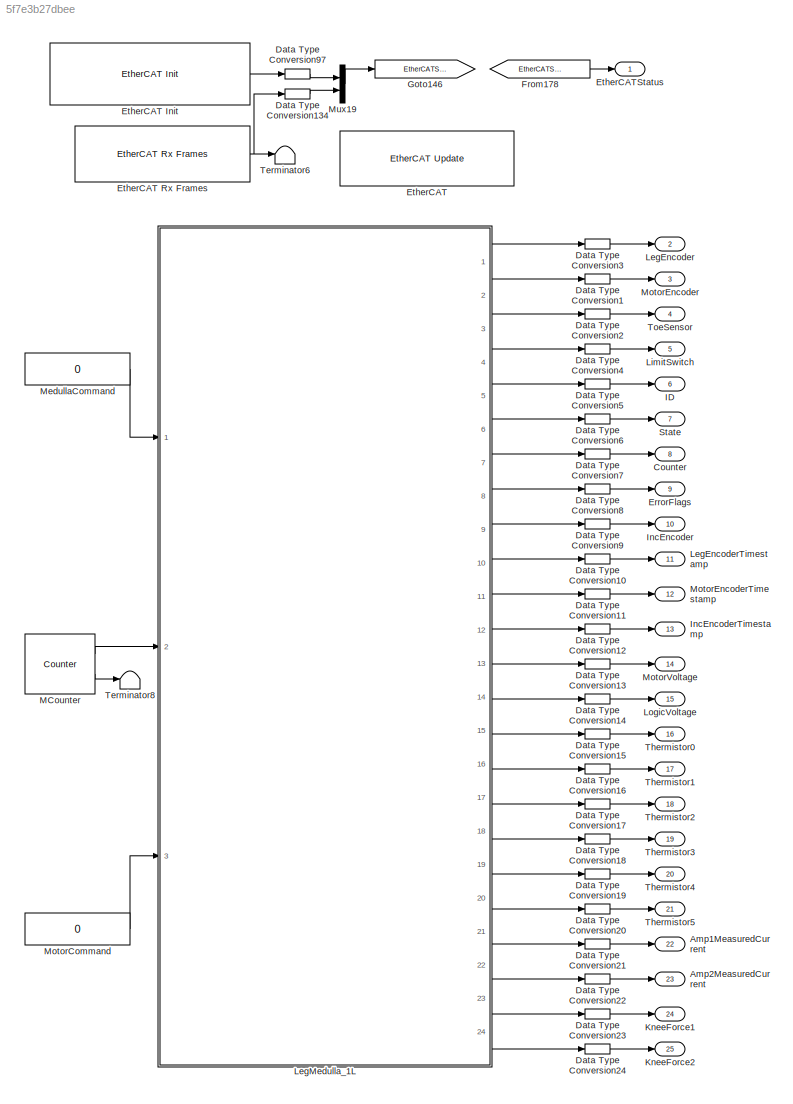
MODEL slx_5f7e3b27dbee
KIND model
BLOCK [Outport] Amp1MeasuredCurrent
  IconDisplay = Port number
  Port = 22
BLOCK [Outport] Amp2MeasuredCurrent
  IconDisplay = Port number
  Port = 23
BLOCK [Outport] Counter
  IconDisplay = Port number
  Port = 8
BLOCK [DataTypeConversion] Data Type Conversion1
  OutDataTypeStr = double
  RndMeth = Floor
  SaturateOnIntegerOverflow = off
BLOCK [DataTypeConversion] Data Type Conversion10
  OutDataTypeStr = double
  RndMeth = Floor
  SaturateOnIntegerOverflow = off
BLOCK [DataTypeConversion] Data Type Conversion11
  OutDataTypeStr = double
  RndMeth = Floor
  SaturateOnIntegerOverflow = off
BLOCK [DataTypeConversion] Data Type Conversion12
  OutDataTypeStr = double
  RndMeth = Floor
  SaturateOnIntegerOverflow = off
BLOCK [DataTypeConversion] Data Type Conversion13
  OutDataTypeStr = double
  RndMeth = Floor
  SaturateOnIntegerOverflow = off
BLOCK [DataTypeConversion] Data Type Conversion134
  OutDataTypeStr = double
  RndMeth = Floor
  SaturateOnIntegerOverflow = off
BLOCK [DataTypeConversion] Data Type Conversion14
  OutDataTypeStr = double
  RndMeth = Floor
  SaturateOnIntegerOverflow = off
BLOCK [DataTypeConversion] Data Type Conversion15
  OutDataTypeStr = double
  RndMeth = Floor
  SaturateOnIntegerOverflow = off
BLOCK [DataTypeConversion] Data Type Conversion16
  OutDataTypeStr = double
  RndMeth = Floor
  SaturateOnIntegerOverflow = off
BLOCK [DataTypeConversion] Data Type Conversion17
  OutDataTypeStr = double
  RndMeth = Floor
  SaturateOnIntegerOverflow = off
BLOCK [DataTypeConversion] Data Type Conversion18
  OutDataTypeStr = double
  RndMeth = Floor
  SaturateOnIntegerOverflow = off
BLOCK [DataTypeConversion] Data Type Conversion19
  OutDataTypeStr = double
  RndMeth = Floor
  SaturateOnIntegerOverflow = off
BLOCK [DataTypeConversion] Data Type Conversion2
  OutDataTypeStr = double
  RndMeth = Floor
  SaturateOnIntegerOverflow = off
BLOCK [DataTypeConversion] Data Type Conversion20
  OutDataTypeStr = double
  RndMeth = Floor
  SaturateOnIntegerOverflow = off
BLOCK [DataTypeConversion] Data Type Conversion21
  OutDataTypeStr = double
  RndMeth = Floor
  SaturateOnIntegerOverflow = off
BLOCK [DataTypeConversion] Data Type Conversion22
  OutDataTypeStr = double
  RndMeth = Floor
  SaturateOnIntegerOverflow = off
BLOCK [DataTypeConversion] Data Type Conversion23
  OutDataTypeStr = double
  RndMeth = Floor
  SaturateOnIntegerOverflow = off
BLOCK [DataTypeConversion] Data Type Conversion24
  OutDataTypeStr = double
  RndMeth = Floor
  SaturateOnIntegerOverflow = off
BLOCK [DataTypeConversion] Data Type Conversion3
  OutDataTypeStr = double
  RndMeth = Floor
  SaturateOnIntegerOverflow = off
BLOCK [DataTypeConversion] Data Type Conversion4
  OutDataTypeStr = double
  RndMeth = Floor
  SaturateOnIntegerOverflow = off
BLOCK [DataTypeConversion] Data Type Conversion5
  OutDataTypeStr = double
  RndMeth = Floor
  SaturateOnIntegerOverflow = off
BLOCK [DataTypeConversion] Data Type Conversion6
  OutDataTypeStr = double
  RndMeth = Floor
  SaturateOnIntegerOverflow = off
BLOCK [DataTypeConversion] Data Type Conversion7
  OutDataTypeStr = double
  RndMeth = Floor
  SaturateOnIntegerOverflow = off
BLOCK [DataTypeConversion] Data Type Conversion8
  OutDataTypeStr = double
  RndMeth = Floor
  SaturateOnIntegerOverflow = off
BLOCK [DataTypeConversion] Data Type Conversion9
  OutDataTypeStr = double
  RndMeth = Floor
  SaturateOnIntegerOverflow = off
BLOCK [DataTypeConversion] Data Type Conversion97
  OutDataTypeStr = double
  RndMeth = Floor
  SaturateOnIntegerOverflow = off
BLOCK [Outport] ErrorFlags
  IconDisplay = Port number
  Port = 9
BLOCK [Reference] EtherCAT  REF=xpcethercatlib/EtherCAT Update 
  Ports = []
  Priority = 4
  SourceBlock = xpcethercatlib/EtherCAT Update
  SourceType = xpcethercat_update
  device_id = 0
  task_id_list = [1]
  task_priorities = [1500]
  task_rates = [1]
BLOCK [Reference] EtherCAT Init   REF=xpcethercatlib/EtherCAT Init 
  Ports = [0, 1]
  Priority = 0
  SourceBlock = xpcethercatlib/EtherCAT Init
  SourceType = xpcethercatinit
  config_file = 'SingleLeg-eni.xml'
  device_id = 0
  enaDC = on
  errRptLevel = 0
  pci_bus = 10
  pci_slot = 0
  sample_time = -1
BLOCK [Reference] EtherCAT Rx Frames  REF=xpcethercatlib/EtherCAT Rx Frames 
  Ports = [0, 1]
  Priority = 1
  SourceBlock = xpcethercatlib/EtherCAT Rx Frames
  SourceType = xpcethercat_rcvframes
  device_id = 0
  sample_time = 0
BLOCK [Outport] EtherCATStatus
  IconDisplay = Port number
BLOCK [From] From178
  GotoTag = EtherCATStatus
BLOCK [Goto] Goto146
  GotoTag = EtherCATStatus
BLOCK [Outport] ID
  IconDisplay = Port number
  Port = 6
BLOCK [Outport] IncEncoder
  IconDisplay = Port number
  Port = 10
BLOCK [Outport] IncEncoderTimestamp
  IconDisplay = Port number
  Port = 13
BLOCK [Outport] KneeForce1
  IconDisplay = Port number
  Port = 24
BLOCK [Outport] KneeForce2
  IconDisplay = Port number
  Port = 25
BLOCK [Outport] LegEncoder
  IconDisplay = Port number
  Port = 2
BLOCK [Outport] LegEncoderTimestamp
  IconDisplay = Port number
  Port = 11
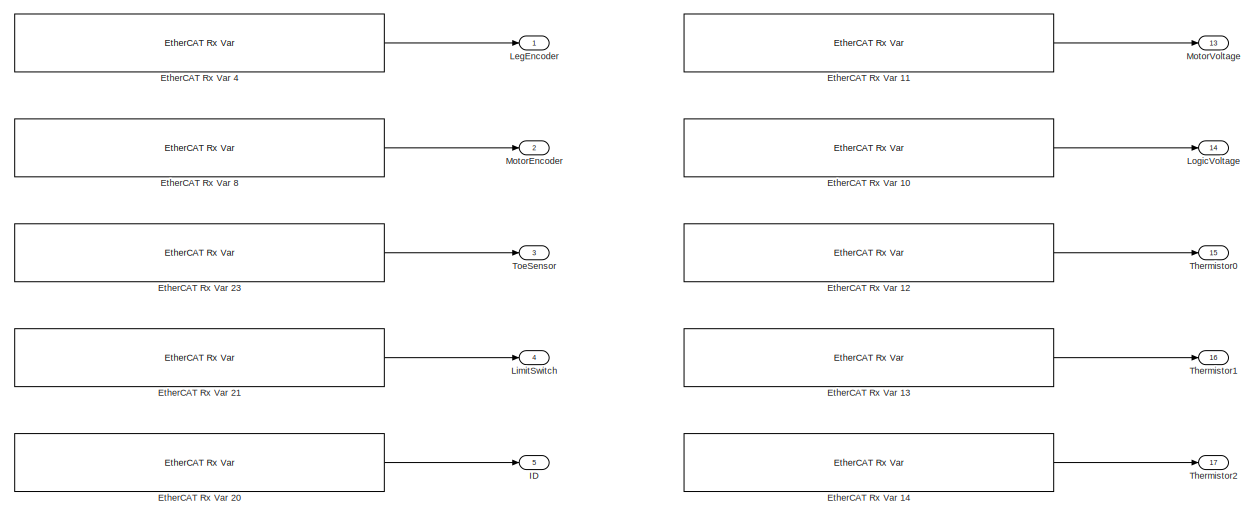
[diagram: LegMedulla_1L - part 1/3, top left region]
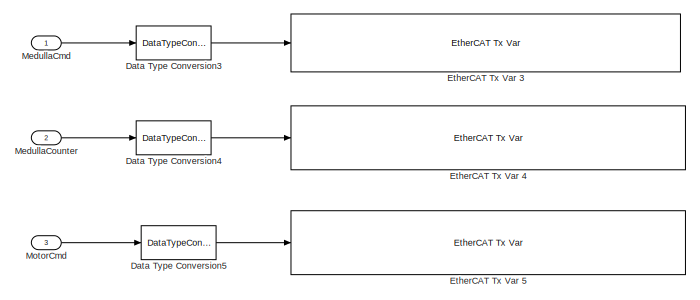
[diagram: LegMedulla_1L - part 2/3, top right region]
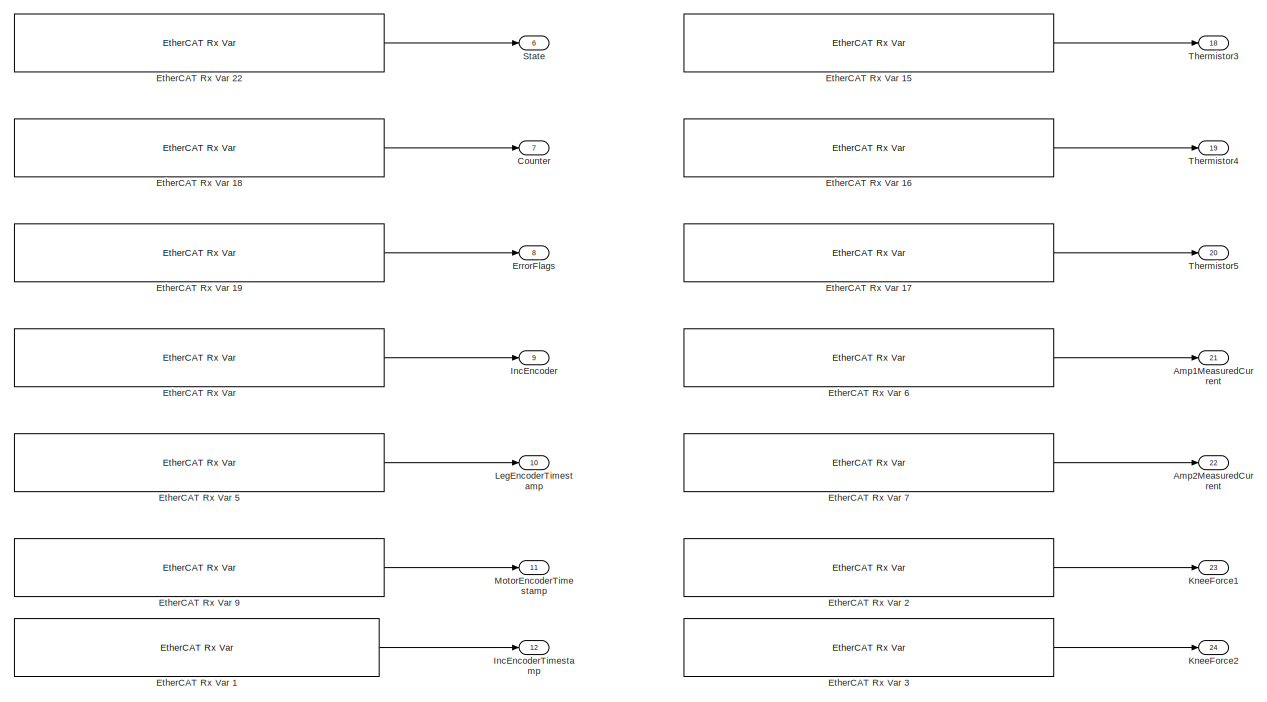
[diagram: LegMedulla_1L - part 3/3, bottom left region]
BLOCK [SubSystem] LegMedulla_1L
  FunctionWithSeparateData = off
  MaskHideContents = off
  MinAlgLoopOccurrences = off
  Opaque = off
  Ports = [3, 24]
  PropExecContextOutsideSubsystem = off
  RTWSystemCode = Auto
  RequestExecContextInheritance = off
BLOCK [Outport] LegMedulla_1L/Amp1MeasuredCurrent
  IconDisplay = Port number
  Port = 21
BLOCK [Outport] LegMedulla_1L/Amp2MeasuredCurrent
  IconDisplay = Port number
  Port = 22
BLOCK [Outport] LegMedulla_1L/Counter
  IconDisplay = Port number
  Port = 7
BLOCK [DataTypeConversion] LegMedulla_1L/Data Type Conversion3
  OutDataTypeStr = uint8
  RndMeth = Floor
  SaturateOnIntegerOverflow = off
BLOCK [DataTypeConversion] LegMedulla_1L/Data Type Conversion4
  OutDataTypeStr = uint16
  RndMeth = Floor
  SaturateOnIntegerOverflow = off
BLOCK [DataTypeConversion] LegMedulla_1L/Data Type Conversion5
  OutDataTypeStr = int32
  RndMeth = Floor
  SaturateOnIntegerOverflow = off
BLOCK [Outport] LegMedulla_1L/ErrorFlags
  IconDisplay = Port number
  Port = 8
BLOCK [Reference] LegMedulla_1L/EtherCAT Rx Var   REF=xpcethercatlib/EtherCAT Rx Var 
  Ports = [0, 1]
  Priority = 2
  SourceBlock = xpcethercatlib/EtherCAT Rx Var
  SourceType = xpcethercat_rx_var
  device_id = 0
  sample_time = 0.001000
  sig_dim = 1
  sig_name = Box 1 (ATRIAS 2.1 Leg (Medulla 1.5)).Incremental Encoder.Incremental Encoder
  sig_offset = 744
  sig_type = uint16
  type_size = 16
BLOCK [Reference] LegMedulla_1L/EtherCAT Rx Var 1  REF=xpcethercatlib/EtherCAT Rx Var 
  Ports = [0, 1]
  Priority = 2
  SourceBlock = xpcethercatlib/EtherCAT Rx Var
  SourceType = xpcethercat_rx_var
  device_id = 0
  sample_time = 0.001000
  sig_dim = 1
  sig_name = Box 1 (ATRIAS 2.1 Leg (Medulla 1.5)).Incremental Encoder.Incremental Encoder Timestamp
  sig_offset = 760
  sig_type = uint16
  type_size = 16
BLOCK [Reference] LegMedulla_1L/EtherCAT Rx Var 10  REF=xpcethercatlib/EtherCAT Rx Var 
  Ports = [0, 1]
  Priority = 2
  SourceBlock = xpcethercatlib/EtherCAT Rx Var
  SourceType = xpcethercat_rx_var
  device_id = 0
  sample_time = 0.001000
  sig_dim = 1
  sig_name = Box 1 (ATRIAS 2.1 Leg (Medulla 1.5)).Power.Logic Voltage
  sig_offset = 792
  sig_type = uint16
  type_size = 16
BLOCK [Reference] LegMedulla_1L/EtherCAT Rx Var 11  REF=xpcethercatlib/EtherCAT Rx Var 
  Ports = [0, 1]
  Priority = 2
  SourceBlock = xpcethercatlib/EtherCAT Rx Var
  SourceType = xpcethercat_rx_var
  device_id = 0
  sample_time = 0.001000
  sig_dim = 1
  sig_name = Box 1 (ATRIAS 2.1 Leg (Medulla 1.5)).Power.Motor Voltage
  sig_offset = 776
  sig_type = uint16
  type_size = 16
BLOCK [Reference] LegMedulla_1L/EtherCAT Rx Var 12  REF=xpcethercatlib/EtherCAT Rx Var 
  Ports = [0, 1]
  Priority = 2
  SourceBlock = xpcethercatlib/EtherCAT Rx Var
  SourceType = xpcethercat_rx_var
  device_id = 0
  sample_time = 0.001000
  sig_dim = 1
  sig_name = Box 1 (ATRIAS 2.1 Leg (Medulla 1.5)).Thermistors.Thermistor 0
  sig_offset = 808
  sig_type = uint16
  type_size = 16
BLOCK [Reference] LegMedulla_1L/EtherCAT Rx Var 13  REF=xpcethercatlib/EtherCAT Rx Var 
  Ports = [0, 1]
  Priority = 2
  SourceBlock = xpcethercatlib/EtherCAT Rx Var
  SourceType = xpcethercat_rx_var
  device_id = 0
  sample_time = 0.001000
  sig_dim = 1
  sig_name = Box 1 (ATRIAS 2.1 Leg (Medulla 1.5)).Thermistors.Thermistor 1
  sig_offset = 824
  sig_type = uint16
  type_size = 16
BLOCK [Reference] LegMedulla_1L/EtherCAT Rx Var 14  REF=xpcethercatlib/EtherCAT Rx Var 
  Ports = [0, 1]
  Priority = 2
  SourceBlock = xpcethercatlib/EtherCAT Rx Var
  SourceType = xpcethercat_rx_var
  device_id = 0
  sample_time = 0.001000
  sig_dim = 1
  sig_name = Box 1 (ATRIAS 2.1 Leg (Medulla 1.5)).Thermistors.Thermistor 2
  sig_offset = 840
  sig_type = uint16
  type_size = 16
BLOCK [Reference] LegMedulla_1L/EtherCAT Rx Var 15  REF=xpcethercatlib/EtherCAT Rx Var 
  Ports = [0, 1]
  Priority = 2
  SourceBlock = xpcethercatlib/EtherCAT Rx Var
  SourceType = xpcethercat_rx_var
  device_id = 0
  sample_time = 0.001000
  sig_dim = 1
  sig_name = Box 1 (ATRIAS 2.1 Leg (Medulla 1.5)).Thermistors.Thermistor 3
  sig_offset = 856
  sig_type = uint16
  type_size = 16
BLOCK [Reference] LegMedulla_1L/EtherCAT Rx Var 16  REF=xpcethercatlib/EtherCAT Rx Var 
  Ports = [0, 1]
  Priority = 2
  SourceBlock = xpcethercatlib/EtherCAT Rx Var
  SourceType = xpcethercat_rx_var
  device_id = 0
  sample_time = 0.001000
  sig_dim = 1
  sig_name = Box 1 (ATRIAS 2.1 Leg (Medulla 1.5)).Thermistors.Thermistor 4
  sig_offset = 872
  sig_type = uint16
  type_size = 16
BLOCK [Reference] LegMedulla_1L/EtherCAT Rx Var 17  REF=xpcethercatlib/EtherCAT Rx Var 
  Ports = [0, 1]
  Priority = 2
  SourceBlock = xpcethercatlib/EtherCAT Rx Var
  SourceType = xpcethercat_rx_var
  device_id = 0
  sample_time = 0.001000
  sig_dim = 1
  sig_name = Box 1 (ATRIAS 2.1 Leg (Medulla 1.5)).Thermistors.Thermistor 5
  sig_offset = 888
  sig_type = uint16
  type_size = 16
BLOCK [Reference] LegMedulla_1L/EtherCAT Rx Var 18  REF=xpcethercatlib/EtherCAT Rx Var 
  Ports = [0, 1]
  Priority = 2
  SourceBlock = xpcethercatlib/EtherCAT Rx Var
  SourceType = xpcethercat_rx_var
  device_id = 0
  sample_time = 0.001000
  sig_dim = 1
  sig_name = Box 1 (ATRIAS 2.1 Leg (Medulla 1.5)).uController Status.Counter
  sig_offset = 608
  sig_type = uint8
  type_size = 8
BLOCK [Reference] LegMedulla_1L/EtherCAT Rx Var 19  REF=xpcethercatlib/EtherCAT Rx Var 
  Ports = [0, 1]
  Priority = 2
  SourceBlock = xpcethercatlib/EtherCAT Rx Var
  SourceType = xpcethercat_rx_var
  device_id = 0
  sample_time = 0.001000
  sig_dim = 1
  sig_name = Box 1 (ATRIAS 2.1 Leg (Medulla 1.5)).uController Status.Error Flags
  sig_offset = 616
  sig_type = uint8
  type_size = 8
BLOCK [Reference] LegMedulla_1L/EtherCAT Rx Var 2  REF=xpcethercatlib/EtherCAT Rx Var 
  Ports = [0, 1]
  Priority = 2
  SourceBlock = xpcethercatlib/EtherCAT Rx Var
  SourceType = xpcethercat_rx_var
  device_id = 0
  sample_time = 0.001000
  sig_dim = 1
  sig_name = Box 1 (ATRIAS 2.1 Leg (Medulla 1.5)).Knee Force.Knee Force 1
  sig_offset = 936
  sig_type = uint16
  type_size = 16
BLOCK [Reference] LegMedulla_1L/EtherCAT Rx Var 20  REF=xpcethercatlib/EtherCAT Rx Var 
  Ports = [0, 1]
  Priority = 2
  SourceBlock = xpcethercatlib/EtherCAT Rx Var
  SourceType = xpcethercat_rx_var
  device_id = 0
  sample_time = 0.001000
  sig_dim = 1
  sig_name = Box 1 (ATRIAS 2.1 Leg (Medulla 1.5)).uController Status.ID
  sig_offset = 592
  sig_type = uint8
  type_size = 8
BLOCK [Reference] LegMedulla_1L/EtherCAT Rx Var 21  REF=xpcethercatlib/EtherCAT Rx Var 
  Ports = [0, 1]
  Priority = 2
  SourceBlock = xpcethercatlib/EtherCAT Rx Var
  SourceType = xpcethercat_rx_var
  device_id = 0
  sample_time = 0.001000
  sig_dim = 1
  sig_name = Box 1 (ATRIAS 2.1 Leg (Medulla 1.5)).uController Status.Limit Switch
  sig_offset = 624
  sig_type = uint8
  type_size = 8
BLOCK [Reference] LegMedulla_1L/EtherCAT Rx Var 22  REF=xpcethercatlib/EtherCAT Rx Var 
  Ports = [0, 1]
  Priority = 2
  SourceBlock = xpcethercatlib/EtherCAT Rx Var
  SourceType = xpcethercat_rx_var
  device_id = 0
  sample_time = 0.001000
  sig_dim = 1
  sig_name = Box 1 (ATRIAS 2.1 Leg (Medulla 1.5)).uController Status.State
  sig_offset = 600
  sig_type = uint8
  type_size = 8
BLOCK [Reference] LegMedulla_1L/EtherCAT Rx Var 23  REF=xpcethercatlib/EtherCAT Rx Var 
  Ports = [0, 1]
  Priority = 2
  SourceBlock = xpcethercatlib/EtherCAT Rx Var
  SourceType = xpcethercat_rx_var
  device_id = 0
  sample_time = 0.001000
  sig_dim = 1
  sig_name = Box 1 (ATRIAS 2.1 Leg (Medulla 1.5)).uController Status.Toe Sensor
  sig_offset = 632
  sig_type = uint16
  type_size = 16
BLOCK [Reference] LegMedulla_1L/EtherCAT Rx Var 3  REF=xpcethercatlib/EtherCAT Rx Var 
  Ports = [0, 1]
  Priority = 2
  SourceBlock = xpcethercatlib/EtherCAT Rx Var
  SourceType = xpcethercat_rx_var
  device_id = 0
  sample_time = 0.001000
  sig_dim = 1
  sig_name = Box 1 (ATRIAS 2.1 Leg (Medulla 1.5)).Knee Force.Knee Force 2
  sig_offset = 952
  sig_type = uint16
  type_size = 16
BLOCK [Reference] LegMedulla_1L/EtherCAT Rx Var 4  REF=xpcethercatlib/EtherCAT Rx Var 
  Ports = [0, 1]
  Priority = 2
  SourceBlock = xpcethercatlib/EtherCAT Rx Var
  SourceType = xpcethercat_rx_var
  device_id = 0
  sample_time = 0.001000
  sig_dim = 1
  sig_name = Box 1 (ATRIAS 2.1 Leg (Medulla 1.5)).Leg Encoder.Leg Encoder
  sig_offset = 696
  sig_type = uint32
  type_size = 32
BLOCK [Reference] LegMedulla_1L/EtherCAT Rx Var 5  REF=xpcethercatlib/EtherCAT Rx Var 
  Ports = [0, 1]
  Priority = 2
  SourceBlock = xpcethercatlib/EtherCAT Rx Var
  SourceType = xpcethercat_rx_var
  device_id = 0
  sample_time = 0.001000
  sig_dim = 1
  sig_name = Box 1 (ATRIAS 2.1 Leg (Medulla 1.5)).Leg Encoder.Leg Encoder Timestamp
  sig_offset = 728
  sig_type = uint16
  type_size = 16
BLOCK [Reference] LegMedulla_1L/EtherCAT Rx Var 6  REF=xpcethercatlib/EtherCAT Rx Var 
  Ports = [0, 1]
  Priority = 2
  SourceBlock = xpcethercatlib/EtherCAT Rx Var
  SourceType = xpcethercat_rx_var
  device_id = 0
  sample_time = 0.001000
  sig_dim = 1
  sig_name = Box 1 (ATRIAS 2.1 Leg (Medulla 1.5)).Measured Current.Amp 1 Measured Current
  sig_offset = 904
  sig_type = int16
  type_size = 16
BLOCK [Reference] LegMedulla_1L/EtherCAT Rx Var 7  REF=xpcethercatlib/EtherCAT Rx Var 
  Ports = [0, 1]
  Priority = 2
  SourceBlock = xpcethercatlib/EtherCAT Rx Var
  SourceType = xpcethercat_rx_var
  device_id = 0
  sample_time = 0.001000
  sig_dim = 1
  sig_name = Box 1 (ATRIAS 2.1 Leg (Medulla 1.5)).Measured Current.Amp 2 Measured Current
  sig_offset = 920
  sig_type = int16
  type_size = 16
BLOCK [Reference] LegMedulla_1L/EtherCAT Rx Var 8  REF=xpcethercatlib/EtherCAT Rx Var 
  Ports = [0, 1]
  Priority = 2
  SourceBlock = xpcethercatlib/EtherCAT Rx Var
  SourceType = xpcethercat_rx_var
  device_id = 0
  sample_time = 0.001000
  sig_dim = 1
  sig_name = Box 1 (ATRIAS 2.1 Leg (Medulla 1.5)).Motor Encoder.Motor Encoder
  sig_offset = 648
  sig_type = uint32
  type_size = 32
BLOCK [Reference] LegMedulla_1L/EtherCAT Rx Var 9  REF=xpcethercatlib/EtherCAT Rx Var 
  Ports = [0, 1]
  Priority = 2
  SourceBlock = xpcethercatlib/EtherCAT Rx Var
  SourceType = xpcethercat_rx_var
  device_id = 0
  sample_time = 0.001000
  sig_dim = 1
  sig_name = Box 1 (ATRIAS 2.1 Leg (Medulla 1.5)).Motor Encoder.Motor Encoder Timestamp
  sig_offset = 680
  sig_type = uint16
  type_size = 16
BLOCK [Reference] LegMedulla_1L/EtherCAT Tx Var 3  REF=xpcethercatlib/EtherCAT Tx Var 
  Ports = [1]
  Priority = 3
  SourceBlock = xpcethercatlib/EtherCAT Tx Var
  SourceType = xpcethercat_tx_var
  device_id = 0
  sample_time = 0.001000
  sig_dim = 1
  sig_name = Box 1 (ATRIAS 2.1 Leg (Medulla 1.5)).uControllerInput.Command
  sig_offset = 592
  sig_type = uint8
  type_size = 8
BLOCK [Reference] LegMedulla_1L/EtherCAT Tx Var 4  REF=xpcethercatlib/EtherCAT Tx Var 
  Ports = [1]
  Priority = 3
  SourceBlock = xpcethercatlib/EtherCAT Tx Var
  SourceType = xpcethercat_tx_var
  device_id = 0
  sample_time = 0.001000
  sig_dim = 1
  sig_name = Box 1 (ATRIAS 2.1 Leg (Medulla 1.5)).uControllerInput.Counter
  sig_offset = 600
  sig_type = uint16
  type_size = 16
BLOCK [Reference] LegMedulla_1L/EtherCAT Tx Var 5  REF=xpcethercatlib/EtherCAT Tx Var 
  Ports = [1]
  Priority = 3
  SourceBlock = xpcethercatlib/EtherCAT Tx Var
  SourceType = xpcethercat_tx_var
  device_id = 0
  sample_time = 0.001000
  sig_dim = 1
  sig_name = Box 1 (ATRIAS 2.1 Leg (Medulla 1.5)).uControllerInput.Motor Current
  sig_offset = 616
  sig_type = int32
  type_size = 32
BLOCK [Outport] LegMedulla_1L/ID
  IconDisplay = Port number
  Port = 5
BLOCK [Outport] LegMedulla_1L/IncEncoder
  IconDisplay = Port number
  Port = 9
BLOCK [Outport] LegMedulla_1L/IncEncoderTimestamp
  IconDisplay = Port number
  Port = 12
BLOCK [Outport] LegMedulla_1L/KneeForce1
  IconDisplay = Port number
  Port = 23
BLOCK [Outport] LegMedulla_1L/KneeForce2
  IconDisplay = Port number
  Port = 24
BLOCK [Outport] LegMedulla_1L/LegEncoder
  IconDisplay = Port number
BLOCK [Outport] LegMedulla_1L/LegEncoderTimestamp
  IconDisplay = Port number
  Port = 10
BLOCK [Outport] LegMedulla_1L/LimitSwitch
  IconDisplay = Port number
  Port = 4
BLOCK [Outport] LegMedulla_1L/LogicVoltage
  IconDisplay = Port number
  Port = 14
BLOCK [Inport] LegMedulla_1L/MedullaCmd
  IconDisplay = Port number
BLOCK [Inport] LegMedulla_1L/MedullaCounter
  IconDisplay = Port number
  Port = 2
BLOCK [Inport] LegMedulla_1L/MotorCmd
  IconDisplay = Port number
  Port = 3
BLOCK [Outport] LegMedulla_1L/MotorEncoder
  IconDisplay = Port number
  Port = 2
BLOCK [Outport] LegMedulla_1L/MotorEncoderTimestamp
  IconDisplay = Port number
  Port = 11
BLOCK [Outport] LegMedulla_1L/MotorVoltage
  IconDisplay = Port number
  Port = 13
BLOCK [Outport] LegMedulla_1L/State
  IconDisplay = Port number
  Port = 6
BLOCK [Outport] LegMedulla_1L/Thermistor0
  IconDisplay = Port number
  Port = 15
BLOCK [Outport] LegMedulla_1L/Thermistor1
  IconDisplay = Port number
  Port = 16
BLOCK [Outport] LegMedulla_1L/Thermistor2
  IconDisplay = Port number
  Port = 17
BLOCK [Outport] LegMedulla_1L/Thermistor3
  IconDisplay = Port number
  Port = 18
BLOCK [Outport] LegMedulla_1L/Thermistor4
  IconDisplay = Port number
  Port = 19
BLOCK [Outport] LegMedulla_1L/Thermistor5
  IconDisplay = Port number
  Port = 20
BLOCK [Outport] LegMedulla_1L/ToeSensor
  IconDisplay = Port number
  Port = 3
BLOCK [Outport] LimitSwitch
  IconDisplay = Port number
  Port = 5
BLOCK [Outport] LogicVoltage
  IconDisplay = Port number
  Port = 15
BLOCK [Reference] MCounter  REF=dspswit3/Counter
  CntDtype = double
  CountEvent = Free running
  CounterSize = User defined
  Direction = Up
  HitDtype = Logical
  HitValue = 32
  InitialCount = 0
  MaxCount = 65535
  Output = Count and Hit
  Ports = [0, 2]
  ResetInput = off
  SamplesPerFrame = 1
  SourceBlock = dspswit3/Counter
  SourceType = Counter
  Ts = .001
BLOCK [Constant] MedullaCommand
  Value = 0
BLOCK [Constant] MotorCommand
  Value = 0
BLOCK [Outport] MotorEncoder
  IconDisplay = Port number
  Port = 3
BLOCK [Outport] MotorEncoderTimestamp
  IconDisplay = Port number
  Port = 12
BLOCK [Outport] MotorVoltage
  IconDisplay = Port number
  Port = 14
BLOCK [Mux] Mux19
  DisplayOption = bar
  Inputs = 2
  Ports = [2, 1]
BLOCK [Outport] State
  IconDisplay = Port number
  Port = 7
BLOCK [Terminator] Terminator6
BLOCK [Terminator] Terminator8
BLOCK [Outport] Thermistor0
  IconDisplay = Port number
  Port = 16
BLOCK [Outport] Thermistor1
  IconDisplay = Port number
  Port = 17
BLOCK [Outport] Thermistor2
  IconDisplay = Port number
  Port = 18
BLOCK [Outport] Thermistor3
  IconDisplay = Port number
  Port = 19
BLOCK [Outport] Thermistor4
  IconDisplay = Port number
  Port = 20
BLOCK [Outport] Thermistor5
  IconDisplay = Port number
  Port = 21
BLOCK [Outport] ToeSensor
  IconDisplay = Port number
  Port = 4
LINE Data Type Conversion10:1 -> LegEncoderTimestamp:1
LINE Data Type Conversion11:1 -> MotorEncoderTimestamp:1
LINE Data Type Conversion12:1 -> IncEncoderTimestamp:1
LINE Data Type Conversion134:1 -> Mux19:2
LINE Data Type Conversion13:1 -> MotorVoltage:1
LINE Data Type Conversion14:1 -> LogicVoltage:1
LINE Data Type Conversion15:1 -> Thermistor0:1
LINE Data Type Conversion16:1 -> Thermistor1:1
LINE Data Type Conversion17:1 -> Thermistor2:1
LINE Data Type Conversion18:1 -> Thermistor3:1
LINE Data Type Conversion19:1 -> Thermistor4:1
LINE Data Type Conversion1:1 -> MotorEncoder:1
LINE Data Type Conversion20:1 -> Thermistor5:1
LINE Data Type Conversion21:1 -> Amp1MeasuredCurrent:1
LINE Data Type Conversion22:1 -> Amp2MeasuredCurrent:1
LINE Data Type Conversion23:1 -> KneeForce1:1
LINE Data Type Conversion24:1 -> KneeForce2:1
LINE Data Type Conversion2:1 -> ToeSensor:1
LINE Data Type Conversion3:1 -> LegEncoder:1
LINE Data Type Conversion4:1 -> LimitSwitch:1
LINE Data Type Conversion5:1 -> ID:1
LINE Data Type Conversion6:1 -> State:1
LINE Data Type Conversion7:1 -> Counter:1
LINE Data Type Conversion8:1 -> ErrorFlags:1
LINE Data Type Conversion97:1 -> Mux19:1
LINE Data Type Conversion9:1 -> IncEncoder:1
LINE EtherCAT Init :1 -> Data Type Conversion97:1
NET EtherCAT Rx Frames:1 -> Data Type Conversion134:1, Terminator6:1
LINE From178:1 -> EtherCATStatus:1
LINE LegMedulla_1L/Data Type Conversion3:1 -> LegMedulla_1L/EtherCAT Tx Var 3:1
LINE LegMedulla_1L/Data Type Conversion4:1 -> LegMedulla_1L/EtherCAT Tx Var 4:1
LINE LegMedulla_1L/Data Type Conversion5:1 -> LegMedulla_1L/EtherCAT Tx Var 5:1
LINE LegMedulla_1L/EtherCAT Rx Var 10:1 -> LegMedulla_1L/LogicVoltage:1
LINE LegMedulla_1L/EtherCAT Rx Var 11:1 -> LegMedulla_1L/MotorVoltage:1
LINE LegMedulla_1L/EtherCAT Rx Var 12:1 -> LegMedulla_1L/Thermistor0:1
LINE LegMedulla_1L/EtherCAT Rx Var 13:1 -> LegMedulla_1L/Thermistor1:1
LINE LegMedulla_1L/EtherCAT Rx Var 14:1 -> LegMedulla_1L/Thermistor2:1
LINE LegMedulla_1L/EtherCAT Rx Var 15:1 -> LegMedulla_1L/Thermistor3:1
LINE LegMedulla_1L/EtherCAT Rx Var 16:1 -> LegMedulla_1L/Thermistor4:1
LINE LegMedulla_1L/EtherCAT Rx Var 17:1 -> LegMedulla_1L/Thermistor5:1
LINE LegMedulla_1L/EtherCAT Rx Var 18:1 -> LegMedulla_1L/Counter:1
LINE LegMedulla_1L/EtherCAT Rx Var 19:1 -> LegMedulla_1L/ErrorFlags:1
LINE LegMedulla_1L/EtherCAT Rx Var 1:1 -> LegMedulla_1L/IncEncoderTimestamp:1
LINE LegMedulla_1L/EtherCAT Rx Var 20:1 -> LegMedulla_1L/ID:1
LINE LegMedulla_1L/EtherCAT Rx Var 21:1 -> LegMedulla_1L/LimitSwitch:1
LINE LegMedulla_1L/EtherCAT Rx Var 22:1 -> LegMedulla_1L/State:1
LINE LegMedulla_1L/EtherCAT Rx Var 23:1 -> LegMedulla_1L/ToeSensor:1
LINE LegMedulla_1L/EtherCAT Rx Var 2:1 -> LegMedulla_1L/KneeForce1:1
LINE LegMedulla_1L/EtherCAT Rx Var 3:1 -> LegMedulla_1L/KneeForce2:1
LINE LegMedulla_1L/EtherCAT Rx Var 4:1 -> LegMedulla_1L/LegEncoder:1
LINE LegMedulla_1L/EtherCAT Rx Var 5:1 -> LegMedulla_1L/LegEncoderTimestamp:1
LINE LegMedulla_1L/EtherCAT Rx Var 6:1 -> LegMedulla_1L/Amp1MeasuredCurrent:1
LINE LegMedulla_1L/EtherCAT Rx Var 7:1 -> LegMedulla_1L/Amp2MeasuredCurrent:1
LINE LegMedulla_1L/EtherCAT Rx Var 8:1 -> LegMedulla_1L/MotorEncoder:1
LINE LegMedulla_1L/EtherCAT Rx Var 9:1 -> LegMedulla_1L/MotorEncoderTimestamp:1
LINE LegMedulla_1L/EtherCAT Rx Var :1 -> LegMedulla_1L/IncEncoder:1
LINE LegMedulla_1L/MedullaCmd:1 -> LegMedulla_1L/Data Type Conversion3:1
LINE LegMedulla_1L/MedullaCounter:1 -> LegMedulla_1L/Data Type Conversion4:1
LINE LegMedulla_1L/MotorCmd:1 -> LegMedulla_1L/Data Type Conversion5:1
LINE LegMedulla_1L:1 -> Data Type Conversion3:1
LINE LegMedulla_1L:10 -> Data Type Conversion10:1
LINE LegMedulla_1L:11 -> Data Type Conversion11:1
LINE LegMedulla_1L:12 -> Data Type Conversion12:1
LINE LegMedulla_1L:13 -> Data Type Conversion13:1
LINE LegMedulla_1L:14 -> Data Type Conversion14:1
LINE LegMedulla_1L:15 -> Data Type Conversion15:1
LINE LegMedulla_1L:16 -> Data Type Conversion16:1
LINE LegMedulla_1L:17 -> Data Type Conversion17:1
LINE LegMedulla_1L:18 -> Data Type Conversion18:1
LINE LegMedulla_1L:19 -> Data Type Conversion19:1
LINE LegMedulla_1L:2 -> Data Type Conversion1:1
LINE LegMedulla_1L:20 -> Data Type Conversion20:1
LINE LegMedulla_1L:21 -> Data Type Conversion21:1
LINE LegMedulla_1L:22 -> Data Type Conversion22:1
LINE LegMedulla_1L:23 -> Data Type Conversion23:1
LINE LegMedulla_1L:24 -> Data Type Conversion24:1
LINE LegMedulla_1L:3 -> Data Type Conversion2:1
LINE LegMedulla_1L:4 -> Data Type Conversion4:1
LINE LegMedulla_1L:5 -> Data Type Conversion5:1
LINE LegMedulla_1L:6 -> Data Type Conversion6:1
LINE LegMedulla_1L:7 -> Data Type Conversion7:1
LINE LegMedulla_1L:8 -> Data Type Conversion8:1
LINE LegMedulla_1L:9 -> Data Type Conversion9:1
LINE MCounter:1 -> LegMedulla_1L:2
LINE MCounter:2 -> Terminator8:1
LINE MedullaCommand:1 -> LegMedulla_1L:1
LINE MotorCommand:1 -> LegMedulla_1L:3
LINE Mux19:1 -> Goto146:1
note: NET lines group one-source signal fan-out (src -> all destinations, sorted); 1:1 wires keep LINE
